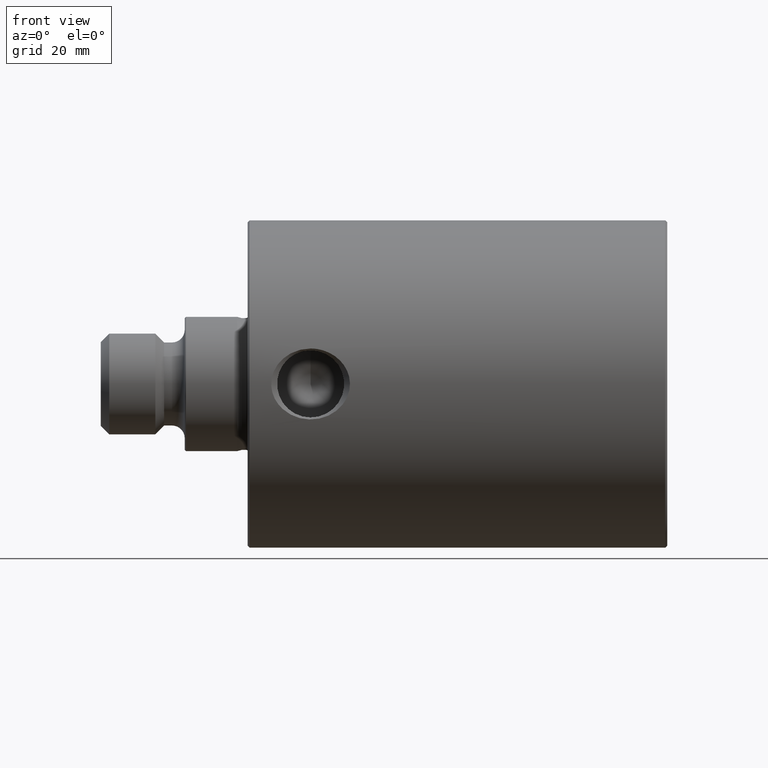
[diagram: clean part render]
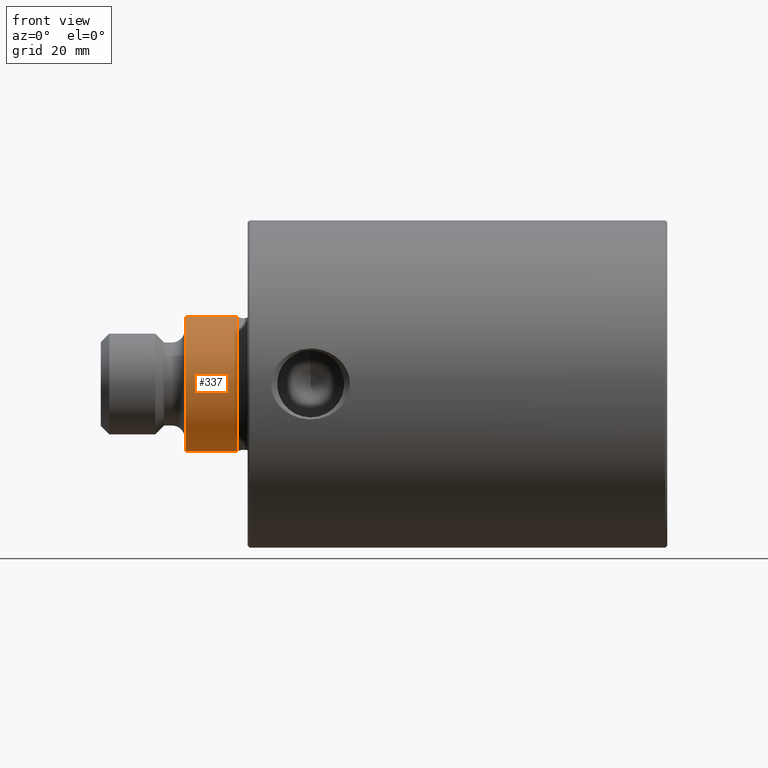
[diagram: same view with one face highlighted and labeled with its STEP entity id]
A machine part, front view. The second image highlights one B-rep face of the part: STEP entity #337.
In plain terms, the highlighted cylindrical surface (bore or boss wall) has radius 16 mm, axis along (1, -0, -0).
Its self-contained STEP definition (entity closure, byte-faithful):
#1 = DIRECTION ( 'NONE',  ( 1.000000000000000000, -0.0000000000000000000, -0.0000000000000000000 ) ) ;
#8 = CARTESIAN_POINT ( 'NONE',  ( -135.0000000000000000, 0.0000000000000000000, 0.0000000000000000000 ) ) ;
#140 = EDGE_LOOP ( 'NONE', ( #802 ) ) ;
#285 = VERTEX_POINT ( 'NONE', #882 ) ;
#292 = AXIS2_PLACEMENT_3D ( 'NONE', #357, #1, #739 ) ;
#295 = DIRECTION ( 'NONE',  ( 0.0000000000000000000, 0.0000000000000000000, -1.000000000000000000 ) ) ;
#315 = ORIENTED_EDGE ( 'NONE', *, *, #551, .F. ) ;
#337 = ADVANCED_FACE ( 'NONE', ( #476, #941 ), #397, .T. ) ;
#357 = CARTESIAN_POINT ( 'NONE',  ( -102.5000000000000600, 0.0000000000000000000, 0.0000000000000000000 ) ) ;
#397 = CYLINDRICAL_SURFACE ( 'NONE', #638, 16.00000000000000000 ) ;
#449 = CARTESIAN_POINT ( 'NONE',  ( -114.6999999999999900, 0.0000000000000000000, -16.00000000000000000 ) ) ;
#476 = FACE_OUTER_BOUND ( 'NONE', #140, .T. ) ;
#501 = CIRCLE ( 'NONE', #292, 16.00000000000000000 ) ;
#542 = EDGE_CURVE ( 'NONE', #810, #810, #813, .T. ) ;
#551 = EDGE_CURVE ( 'NONE', #285, #285, #501, .T. ) ;
#575 = DIRECTION ( 'NONE',  ( 0.0000000000000000000, 0.0000000000000000000, -1.000000000000000000 ) ) ;
#578 = DIRECTION ( 'NONE',  ( -1.000000000000000000, 0.0000000000000000000, 0.0000000000000000000 ) ) ;
#608 = DIRECTION ( 'NONE',  ( 1.000000000000000000, -0.0000000000000000000, -0.0000000000000000000 ) ) ;
#638 = AXIS2_PLACEMENT_3D ( 'NONE', #8, #608, #295 ) ;
#653 = CARTESIAN_POINT ( 'NONE',  ( -114.6999999999999900, 0.0000000000000000000, 0.0000000000000000000 ) ) ;
#709 = EDGE_LOOP ( 'NONE', ( #315 ) ) ;
#739 = DIRECTION ( 'NONE',  ( 0.0000000000000000000, 0.0000000000000000000, 1.000000000000000000 ) ) ;
#802 = ORIENTED_EDGE ( 'NONE', *, *, #542, .F. ) ;
#810 = VERTEX_POINT ( 'NONE', #449 ) ;
#813 = CIRCLE ( 'NONE', #814, 16.00000000000000000 ) ;
#814 = AXIS2_PLACEMENT_3D ( 'NONE', #653, #578, #575 ) ;
#882 = CARTESIAN_POINT ( 'NONE',  ( -102.5000000000000600, 0.0000000000000000000, 16.00000000000000000 ) ) ;
#941 = FACE_OUTER_BOUND ( 'NONE', #709, .T. ) ;